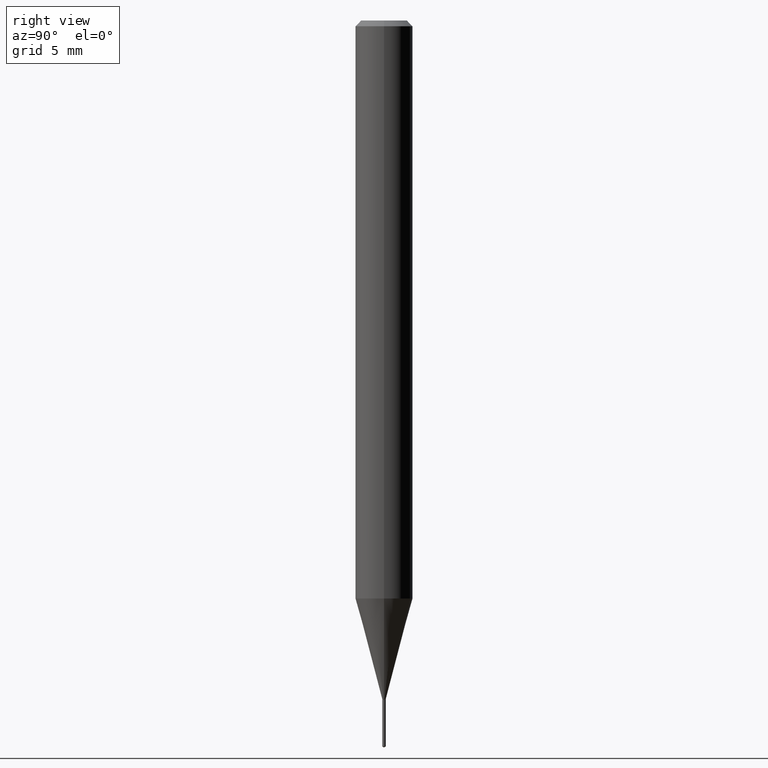
[diagram: clean part render]
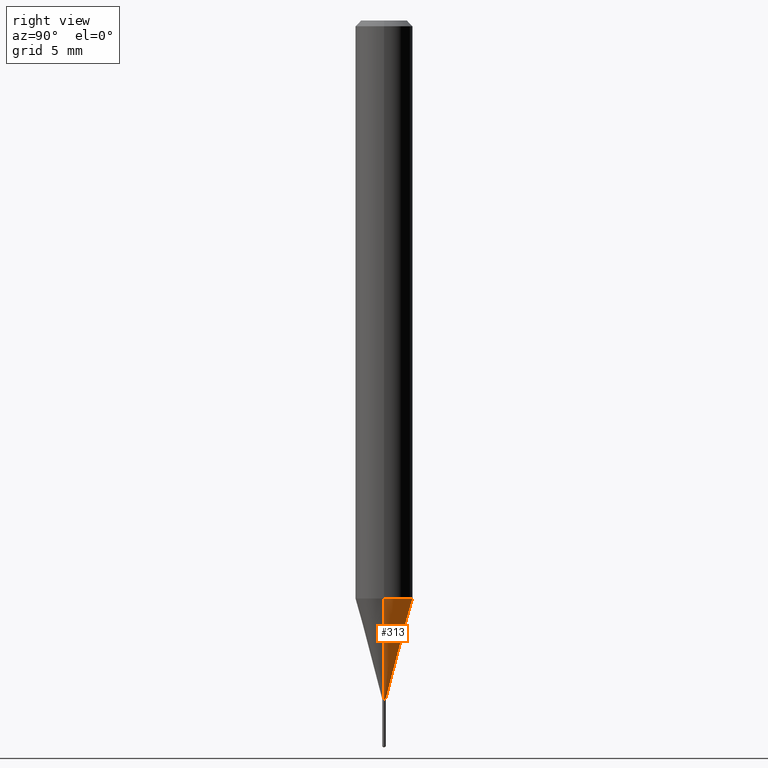
[diagram: same view with one face highlighted and labeled with its STEP entity id]
A machine part, right view. The second image highlights one B-rep face of the part: STEP entity #313.
In plain terms, the highlighted conical surface has half-angle 15 deg.
Its self-contained STEP definition (entity closure, byte-faithful):
#14 = CIRCLE ( 'NONE', #271, 0.003549999999999997602 ) ;
#17 = DIRECTION ( 'NONE',  ( -2.445468806185136597E-29, 3.491481338843145583E-15, 1.000000000000000000 ) ) ;
#45 = CIRCLE ( 'NONE', #489, 0.05905000000000014404 ) ;
#52 = CARTESIAN_POINT ( 'NONE',  ( 3.415341734718161419E-29, -4.876202837828336250E-15, -1.396599999999999842 ) ) ;
#55 = CARTESIAN_POINT ( 'NONE',  ( 0.003549999999999997602, -4.900992355334122390E-15, -1.396599999999999842 ) ) ;
#77 = DIRECTION ( 'NONE',  ( -0.2588190451025211836, 5.211531920934547886E-15, 0.9659258262890679791 ) ) ;
#95 = ORIENTED_EDGE ( 'NONE', *, *, #111, .T. ) ;
#103 = VERTEX_POINT ( 'NONE', #486 ) ;
#104 = CARTESIAN_POINT ( 'NONE',  ( -0.003549999999999997602, -4.850978570708852316E-15, -1.396599999999999842 ) ) ;
#105 = EDGE_CURVE ( 'NONE', #103, #180, #45, .T. ) ;
#111 = EDGE_CURVE ( 'NONE', #417, #153, #14, .T. ) ;
#118 = DIRECTION ( 'NONE',  ( -2.445468806185136597E-29, 3.491481338843145583E-15, 1.000000000000000000 ) ) ;
#123 = VECTOR ( 'NONE', #322, 39.37007874015748854 ) ;
#136 = LINE ( 'NONE', #432, #123 ) ;
#153 = VERTEX_POINT ( 'NONE', #205 ) ;
#180 = VERTEX_POINT ( 'NONE', #356 ) ;
#205 = CARTESIAN_POINT ( 'NONE',  ( -0.003549999999999997602, -4.852026015110506796E-15, -1.396599999999999842 ) ) ;
#227 = ORIENTED_EDGE ( 'NONE', *, *, #105, .F. ) ;
#234 = DIRECTION ( 'NONE',  ( 1.000000000000000000, -6.982962677686272233E-15, 0.000000000000000000 ) ) ;
#245 = FACE_OUTER_BOUND ( 'NONE', #290, .T. ) ;
#271 = AXIS2_PLACEMENT_3D ( 'NONE', #52, #17, #428 ) ;
#276 = CARTESIAN_POINT ( 'NONE',  ( 3.415341734718161419E-29, -4.876202837828336250E-15, -1.396599999999999842 ) ) ;
#290 = EDGE_LOOP ( 'NONE', ( #95, #471, #227, #323 ) ) ;
#310 = VECTOR ( 'NONE', #77, 39.37007874015748854 ) ;
#312 = EDGE_CURVE ( 'NONE', #417, #103, #136, .T. ) ;
#313 = ADVANCED_FACE ( 'NONE', ( #245 ), #446, .T. ) ;
#314 = DIRECTION ( 'NONE',  ( 1.000000000000000000, -6.982962677686296687E-15, 0.000000000000000000 ) ) ;
#322 = DIRECTION ( 'NONE',  ( 0.2588190451025211836, 1.565188264969622559E-15, 0.9659258262890679791 ) ) ;
#323 = ORIENTED_EDGE ( 'NONE', *, *, #312, .F. ) ;
#338 = LINE ( 'NONE', #104, #310 ) ;
#356 = CARTESIAN_POINT ( 'NONE',  ( -0.05905000000000014404, -3.733440943223607521E-15, -1.189471180179926924 ) ) ;
#399 = AXIS2_PLACEMENT_3D ( 'NONE', #276, #439, #314 ) ;
#417 = VERTEX_POINT ( 'NONE', #55 ) ;
#428 = DIRECTION ( 'NONE',  ( 1.000000000000000000, -6.982962677686296687E-15, 0.000000000000000000 ) ) ;
#432 = CARTESIAN_POINT ( 'NONE',  ( 0.003549999999999997602, -4.900992355334122390E-15, -1.396599999999999842 ) ) ;
#439 = DIRECTION ( 'NONE',  ( -2.445468806185136597E-29, 3.491481338843145583E-15, 1.000000000000000000 ) ) ;
#446 = CONICAL_SURFACE ( 'NONE', #399, 0.003549999999999997602, 0.2617993877991499074 ) ;
#454 = EDGE_CURVE ( 'NONE', #153, #180, #338, .T. ) ;
#459 = CARTESIAN_POINT ( 'NONE',  ( 2.908814666986231247E-29, -4.153016428689947803E-15, -1.189471180179926924 ) ) ;
#471 = ORIENTED_EDGE ( 'NONE', *, *, #454, .T. ) ;
#486 = CARTESIAN_POINT ( 'NONE',  ( 0.05905000000000014404, -4.565360374807322723E-15, -1.189471180179926924 ) ) ;
#489 = AXIS2_PLACEMENT_3D ( 'NONE', #459, #118, #234 ) ;